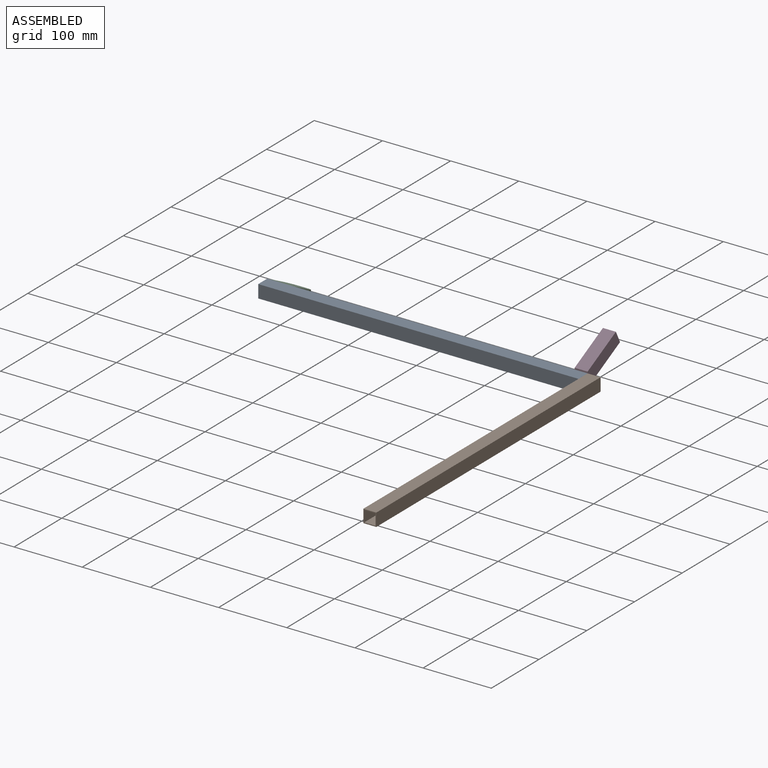
[diagram: assembled view]
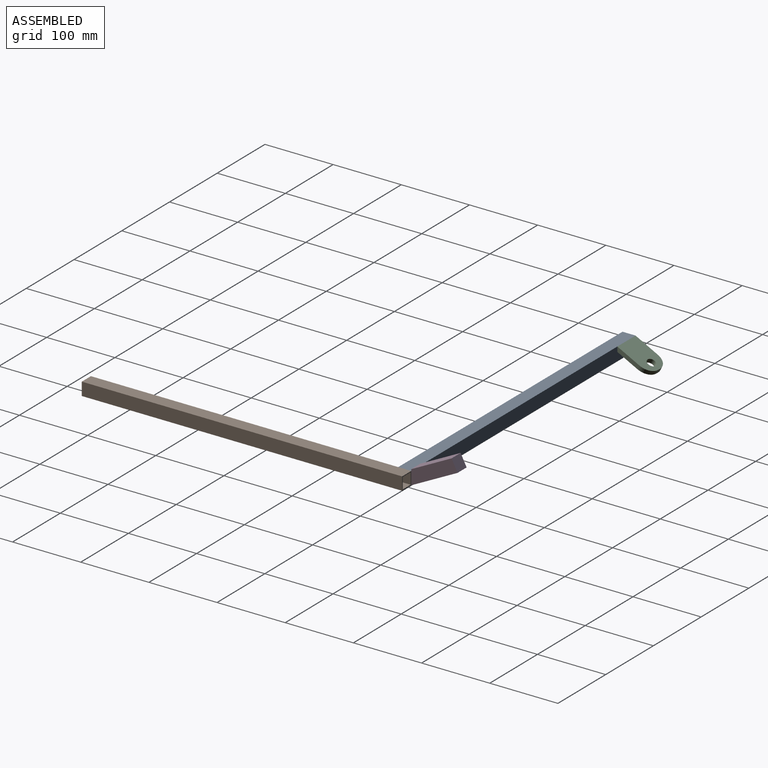
[diagram: assembled view, second angle]
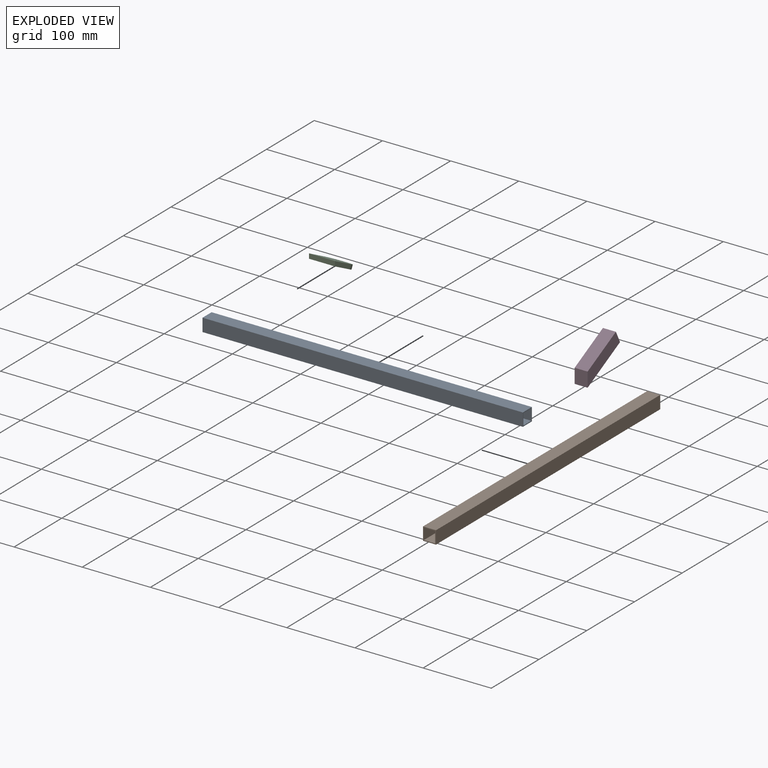
[diagram: exploded view]
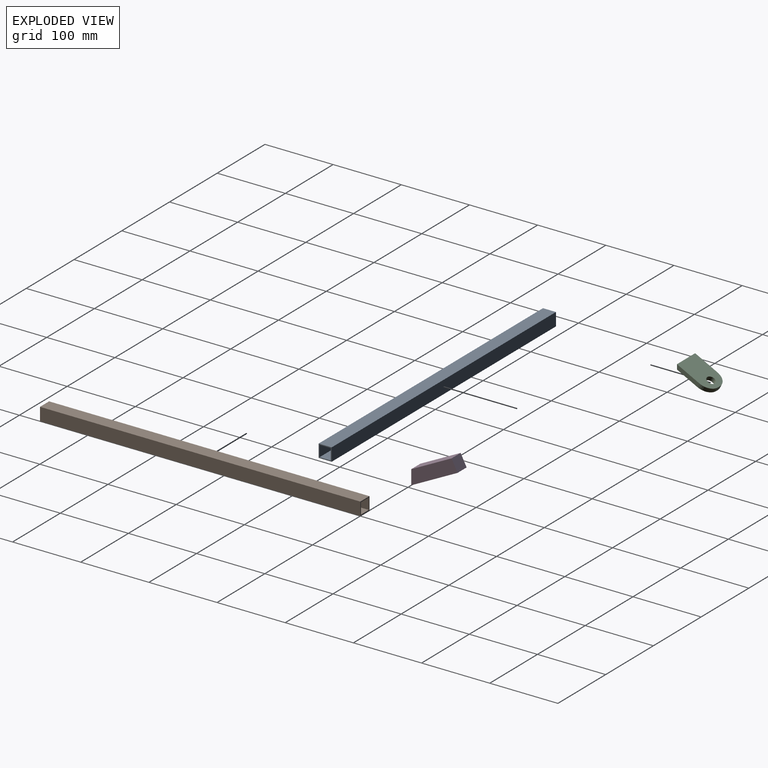
[diagram: exploded view, second angle]
ASSEMBLY  parts=4 mates=3
PART A: 10 faces, bbox 469.9x19.1x19.1 mm
  f0: plane 19.05x19.05mm, normal (1,0,0), area 90.3mm2, adj f2,f3,f4,f5,f6,f7,f8,f9
  f1: plane 19.05x19.05mm, normal (-1,0,0), area 90.3mm2, adj f2,f3,f4,f5,f6,f7,f8,f9
  f2: plane 469.9x19.05mm, normal (0,-1,0), area 8951.6mm2, adj f0,f1,f3,f5
  f3: plane 469.9x19.05mm, normal (0,0,-1), area 8951.6mm2, adj f0,f1,f2,f4
  f4: plane 469.9x19.05mm, normal (0,1,0), area 8951.6mm2, adj f0,f1,f3,f5
  f5: plane 469.9x19.05mm, normal (0,0,1), area 8951.6mm2, adj f0,f1,f2,f4
  f6: plane 469.9x16.51mm, normal (0,0,1), area 7758mm2, adj f0,f1,f7,f9
  f7: plane 469.9x16.51mm, normal (0,1,0), area 7758mm2, adj f0,f1,f6,f8
  f8: plane 469.9x16.51mm, normal (0,0,-1), area 7758mm2, adj f0,f1,f7,f9
  f9: plane 469.9x16.51mm, normal (0,-1,0), area 7758mm2, adj f0,f1,f6,f8
PART B: same geometry as A
PART C: 18 faces, bbox 38.1x54x6.4 mm
  f0: plane 50.8x38.1mm, normal (0,0,-1), area 206.9mm2, adj f1,f2,f4,f7,f8,f9,f10,f11
  f1: plane 36.87x6.35mm, normal (1,0,0), area 223.8mm2, adj f0,f5,f7,f9
  f2: plane 6.35x3.76mm, normal (0,1,0), area 23.9mm2, adj f0,f5,f7,f8
  f3: cylinder r=6.35mm len=12.7mm, axis (0,0,-1), area 253.4mm2, adj f5,f6
  f4: plane 36.87x6.35mm, normal (-1,0,0), area 223.8mm2, adj f0,f5,f8,f9
  f5: plane 54.04x38.1mm, normal (0,0,1), area 1805.5mm2, adj f1,f2,f3,f4,f7,f8,f9
  f6: plane 15.24x15.24mm, normal (0,0,-1), area 55.7mm2, adj f3,f12
  f7: cylinder r=17.17mm len=17.17mm, axis (0,0,-1), area 171.3mm2, adj f0,f1,f2,f5
  f8: cylinder r=17.17mm len=17.17mm, axis (0,0,1), area 171.3mm2, adj f0,f2,f4,f5
  f9: plane 38.1x6.35mm, normal (0,-0.89,-0.45), area 271.5mm2, adj f0,f1,f4,f5
  f10: plane 34.79x5.08mm, normal (-1,0,0), area 170.2mm2, adj f0,f14,f15,f17
  f11: plane 5.08x3.76mm, normal (0,-1,0), area 19.1mm2, adj f0,f14,f15,f16
  f12: cylinder r=7.62mm len=15.24mm, axis (0,0,-1), area 243.2mm2, adj f6,f14
  f13: plane 34.79x5.08mm, normal (1,0,0), area 170.2mm2, adj f0,f14,f16,f17
  f14: plane 50.69x35.56mm, normal (0,0,-1), area 1511.7mm2, adj f10,f11,f12,f13,f15,f16,f17
  f15: cylinder r=15.9mm len=15.9mm, axis (0,0,-1), area 126.9mm2, adj f0,f10,f11,f14
  f16: cylinder r=15.9mm len=15.9mm, axis (0,0,1), area 126.9mm2, adj f0,f11,f13,f14
  f17: plane 35.56x5.08mm, normal (0,0.89,0.45), area 202.7mm2, adj f0,f10,f13,f14
PART D: 6 faces, bbox 19.1x76.2x19.1 mm
  f0: plane 76.2x19.05mm, normal (-1,0,0), area 1359.2mm2, adj f1,f3,f4,f5
  f1: plane 76.2x19.05mm, normal (0,0,-1), area 1451.6mm2, adj f0,f2,f4,f5
  f2: plane 76.2x19.05mm, normal (1,0,0), area 1359.2mm2, adj f1,f3,f4,f5
  f3: plane 66.49x19.05mm, normal (0,0,1), area 1266.7mm2, adj f0,f2,f4,f5
  f4: plane 19.05x19.05mm, normal (0,1,0), area 362.9mm2, adj f0,f1,f2,f3
  f5: plane 19.05x19.05mm, normal (0,-0.89,0.45), area 407.3mm2, adj f0,f1,f2,f3
PLACE A t=(-237.79,8.2,5.4)mm
PLACE B rot(axis=(0,0,1),90deg) t=(251.16,-442.65,5.4)mm
PLACE C rot(axis=(-1,0,0),27deg) t=(-218.74,27.25,17.32)mm
PLACE D rot(axis=(1,0,0),27deg) t=(213.06,95.15,39.99)mm
MATE planar D.f5 <-> A.f4  axis (0,-1,0) through (232.11,27.25,5.4)mm
MATE planar B.f4 <-> A.f0  axis (-1,0,0) through (232.11,27.25,5.4)mm
MATE planar C.f9 <-> A.f4  axis (0,-1,0) through (-237.79,27.25,24.45)mm
